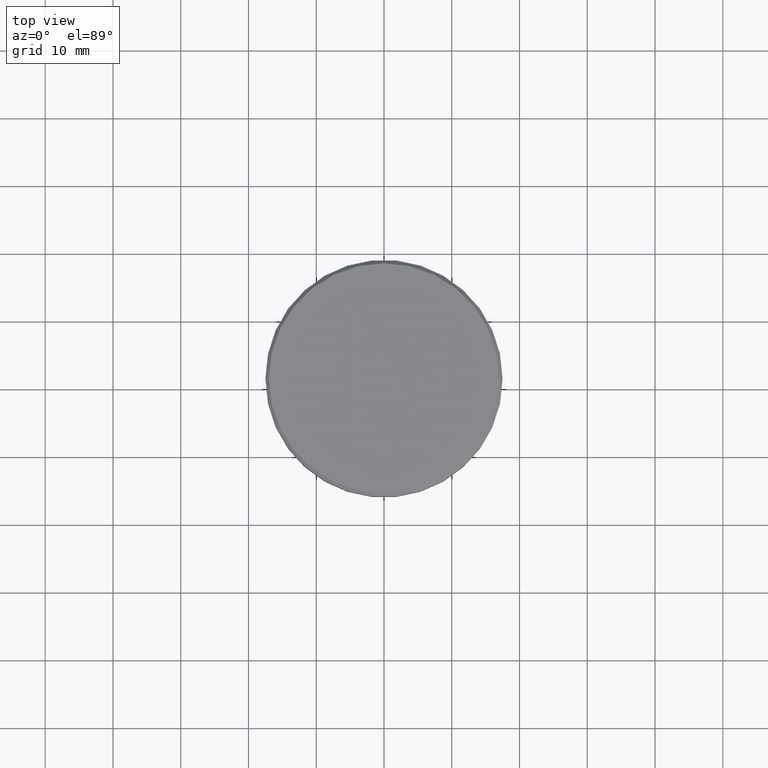
[diagram: clean part render]
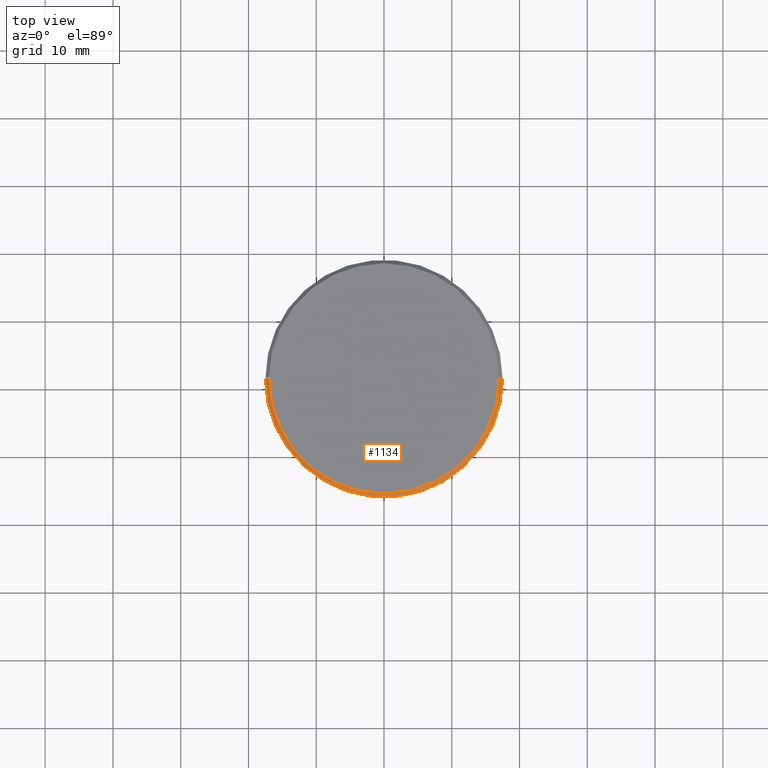
[diagram: same view with one face highlighted and labeled with its STEP entity id]
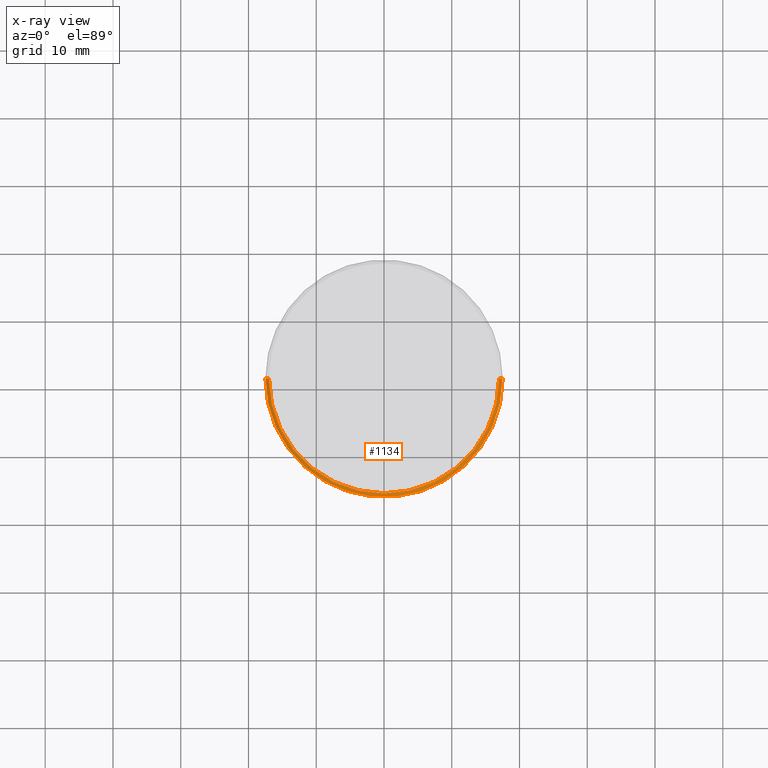
[diagram: x-ray of the same camera — body ghosted, the highlighted face saturated]
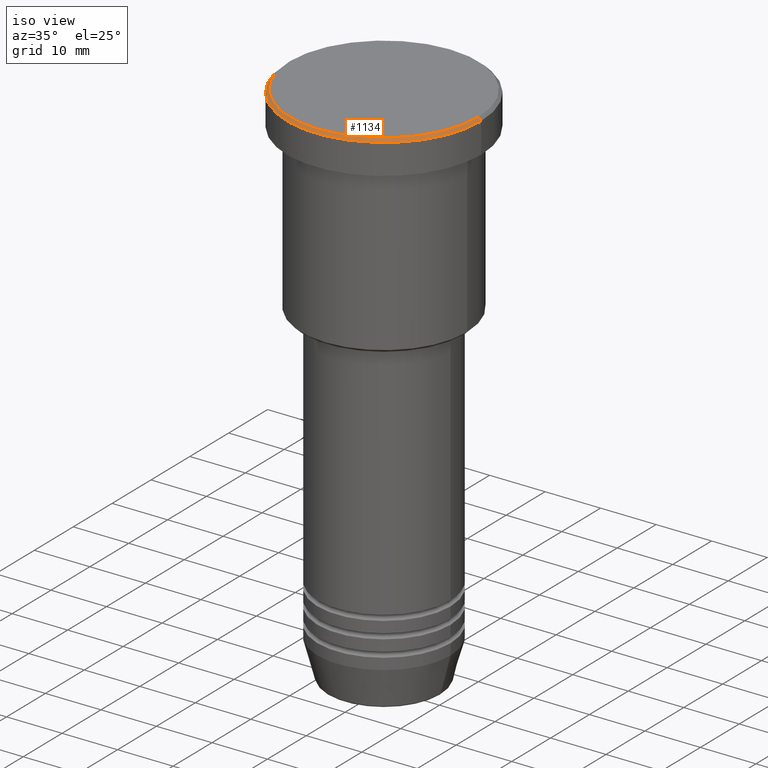
[diagram: same view with one face highlighted and labeled with its STEP entity id]
A machine part, top view. The second image highlights one B-rep face of the part: STEP entity #1134.
The next image is the same camera in x-ray: the body ghosted, the highlighted face saturated — about 0% of this face is hidden behind the body in this view.
A second angle (iso view) of the same face is appended — the face is thin or edge-on in the first view.
In plain terms, the highlighted conical surface has half-angle 45 deg.
Its self-contained STEP definition (entity closure, byte-faithful):
#3 = DIRECTION ( 'NONE',  ( 0.7071067811865573427, 8.659560562355053653E-17, -0.7071067811865378028 ) ) ;
#19 = AXIS2_PLACEMENT_3D ( 'NONE', #517, #692, #66 ) ;
#28 = CARTESIAN_POINT ( 'NONE',  ( 17.00000000000000000, 2.081899558550500280E-15, 0.000000000000000000 ) ) ;
#40 = CONICAL_SURFACE ( 'NONE', #511, 17.00000000000000000, 0.7853981633974621568 ) ;
#41 = ORIENTED_EDGE ( 'NONE', *, *, #307, .F. ) ;
#58 = VECTOR ( 'NONE', #472, 1000.000000000000000 ) ;
#66 = DIRECTION ( 'NONE',  ( 1.000000000000000000, 0.000000000000000000, 0.000000000000000000 ) ) ;
#96 = EDGE_CURVE ( 'NONE', #1071, #602, #570, .T. ) ;
#99 = VECTOR ( 'NONE', #3, 1000.000000000000000 ) ;
#120 = VERTEX_POINT ( 'NONE', #167 ) ;
#167 = CARTESIAN_POINT ( 'NONE',  ( 17.50000000000000000, 0.000000000000000000, -0.4999999999999866773 ) ) ;
#263 = CARTESIAN_POINT ( 'NONE',  ( 17.00000000000000000, 2.112515728529184067E-15, 0.000000000000000000 ) ) ;
#282 = ORIENTED_EDGE ( 'NONE', *, *, #300, .F. ) ;
#300 = EDGE_CURVE ( 'NONE', #602, #120, #853, .T. ) ;
#306 = ORIENTED_EDGE ( 'NONE', *, *, #96, .F. ) ;
#307 = EDGE_CURVE ( 'NONE', #120, #1046, #840, .T. ) ;
#359 = DIRECTION ( 'NONE',  ( 1.000000000000000000, 0.000000000000000000, 0.000000000000000000 ) ) ;
#375 = FACE_OUTER_BOUND ( 'NONE', #653, .T. ) ;
#464 = CARTESIAN_POINT ( 'NONE',  ( -17.00000000000000000, 0.000000000000000000, 0.000000000000000000 ) ) ;
#467 = DIRECTION ( 'NONE',  ( 0.000000000000000000, 0.000000000000000000, -1.000000000000000000 ) ) ;
#472 = DIRECTION ( 'NONE',  ( -0.7071067811865573427, 0.000000000000000000, -0.7071067811865378028 ) ) ;
#511 = AXIS2_PLACEMENT_3D ( 'NONE', #836, #467, #724 ) ;
#517 = CARTESIAN_POINT ( 'NONE',  ( 0.000000000000000000, 0.000000000000000000, 0.000000000000000000 ) ) ;
#570 = CIRCLE ( 'NONE', #19, 17.00000000000000000 ) ;
#602 = VERTEX_POINT ( 'NONE', #263 ) ;
#626 = CARTESIAN_POINT ( 'NONE',  ( -17.00000000000000000, 0.000000000000000000, 0.000000000000000000 ) ) ;
#639 = CARTESIAN_POINT ( 'NONE',  ( 0.000000000000000000, 0.000000000000000000, -0.4999999999999866773 ) ) ;
#653 = EDGE_LOOP ( 'NONE', ( #282, #306, #1041, #41 ) ) ;
#665 = AXIS2_PLACEMENT_3D ( 'NONE', #639, #811, #359 ) ;
#692 = DIRECTION ( 'NONE',  ( -0.000000000000000000, -0.000000000000000000, 1.000000000000000000 ) ) ;
#724 = DIRECTION ( 'NONE',  ( -1.000000000000000000, 0.000000000000000000, 0.000000000000000000 ) ) ;
#786 = CARTESIAN_POINT ( 'NONE',  ( -17.50000000000000000, 2.143131898507868248E-15, -0.4999999999999866773 ) ) ;
#811 = DIRECTION ( 'NONE',  ( 0.000000000000000000, 0.000000000000000000, -1.000000000000000000 ) ) ;
#831 = LINE ( 'NONE', #464, #58 ) ;
#836 = CARTESIAN_POINT ( 'NONE',  ( 0.000000000000000000, 0.000000000000000000, 0.000000000000000000 ) ) ;
#840 = CIRCLE ( 'NONE', #665, 17.50000000000000000 ) ;
#853 = LINE ( 'NONE', #28, #99 ) ;
#1041 = ORIENTED_EDGE ( 'NONE', *, *, #1073, .T. ) ;
#1046 = VERTEX_POINT ( 'NONE', #786 ) ;
#1071 = VERTEX_POINT ( 'NONE', #626 ) ;
#1073 = EDGE_CURVE ( 'NONE', #1071, #1046, #831, .T. ) ;
#1134 = ADVANCED_FACE ( 'NONE', ( #375 ), #40, .T. ) ;